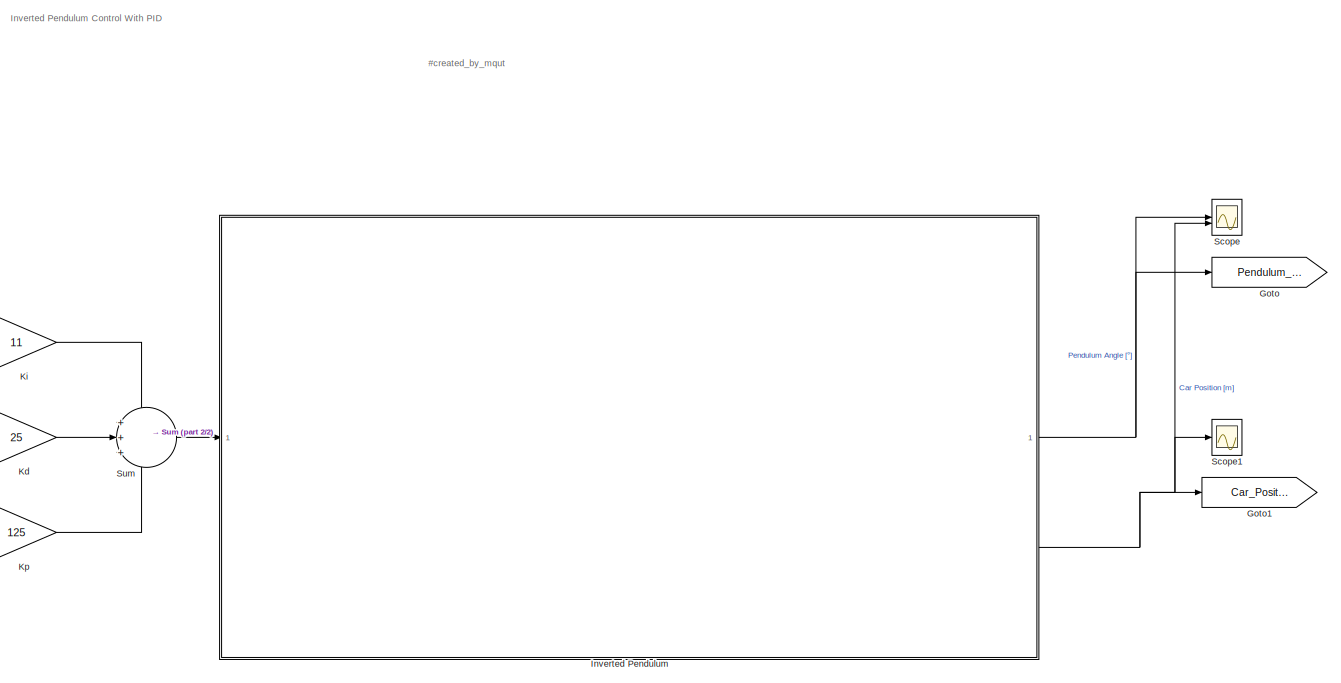
[diagram: root canvas - part 1/2, center side, full height]
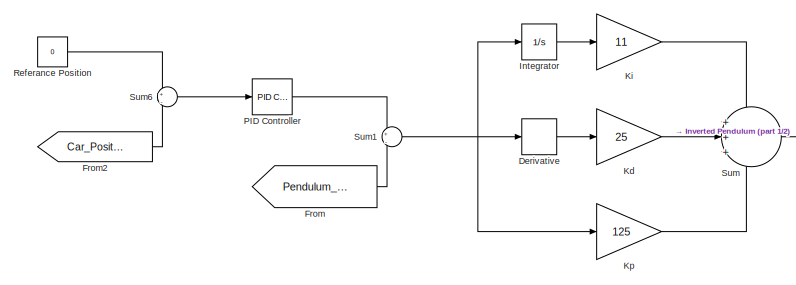
[diagram: root canvas - part 2/2, middle left region]
MODEL slx_9c88fe1b5422
KIND model
CONFIG AbsTol = auto
CONFIG EnableMultiTasking = off
CONFIG FixedStep = 1/1000
CONFIG MaxStep = auto
CONFIG MinStep = auto
CONFIG RelTol = 1e-3
CONFIG SampleTimeConstraint = Unconstrained
CONFIG SolverName = ode4
CONFIG StartTime = 0.0
CONFIG StopTime = 30
BLOCK [Derivative] Derivative
BLOCK [From] From
  GotoTag = Pendulum_Angle
BLOCK [From] From2
  GotoTag = Car_Position
BLOCK [Goto] Goto
  GotoTag = Pendulum_Angle
BLOCK [Goto] Goto1
  GotoTag = Car_Position
BLOCK [Integrator] Integrator
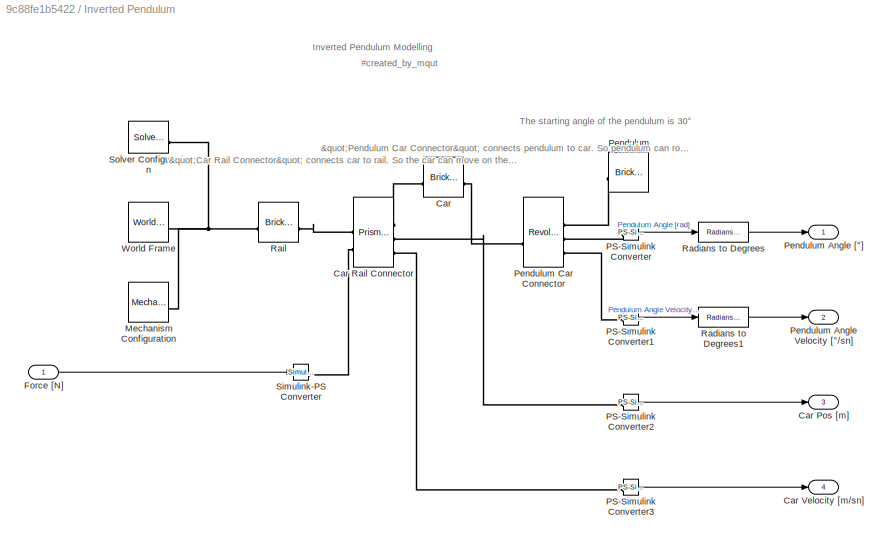
BLOCK [SubSystem] Inverted Pendulum
BLOCK [Reference] Inverted Pendulum/Car  REF=sm_lib/Body Elements/Brick Solid
  SourceBlock = sm_lib/Body Elements/Brick Solid
  SourceType = Brick Solid
BLOCK [Outport] Inverted Pendulum/Car Pos [m]
  Port = 3
BLOCK [Reference] Inverted Pendulum/Car Rail Connector  REF=sm_lib/Joints/Prismatic
Joint
  SourceBlock = sm_lib/Joints/Prismatic\nJoint
  SourceType = Prismatic\nJoint
BLOCK [Outport] Inverted Pendulum/Car Velocity [m//sn]
  Port = 4
BLOCK [Inport] Inverted Pendulum/Force [N]
BLOCK [Reference] Inverted Pendulum/Mechanism Configuration  REF=sm_lib/Utilities/Mechanism
Configuration
  SourceBlock = sm_lib/Utilities/Mechanism\nConfiguration
  SourceType = Mechanism\nConfiguration
BLOCK [Reference] Inverted Pendulum/PS-Simulink Converter  REF=nesl_utility/PS-Simulink
Converter
  SourceBlock = nesl_utility/PS-Simulink\nConverter
  SourceType = PS-Simulink\nConverter
BLOCK [Reference] Inverted Pendulum/PS-Simulink Converter1  REF=nesl_utility/PS-Simulink
Converter
  SourceBlock = nesl_utility/PS-Simulink\nConverter
  SourceType = PS-Simulink\nConverter
BLOCK [Reference] Inverted Pendulum/PS-Simulink Converter2  REF=nesl_utility/PS-Simulink
Converter
  SourceBlock = nesl_utility/PS-Simulink\nConverter
  SourceType = PS-Simulink\nConverter
BLOCK [Reference] Inverted Pendulum/PS-Simulink Converter3  REF=nesl_utility/PS-Simulink
Converter
  SourceBlock = nesl_utility/PS-Simulink\nConverter
  SourceType = PS-Simulink\nConverter
BLOCK [Reference] Inverted Pendulum/Pendulum  REF=sm_lib/Body Elements/Brick Solid
  SourceBlock = sm_lib/Body Elements/Brick Solid
  SourceType = Brick Solid
BLOCK [Outport] Inverted Pendulum/Pendulum Angle Velocity [°//sn]
  Port = 2
BLOCK [Outport] Inverted Pendulum/Pendulum Angle [°]
BLOCK [Reference] Inverted Pendulum/Pendulum Car Connector  REF=sm_lib/Joints/Revolute Joint
  SourceBlock = sm_lib/Joints/Revolute Joint
  SourceType = Revolute Joint
BLOCK [Reference] Inverted Pendulum/Radians to Degrees  REF=simulink_extras/Transformations/Radians
to Degrees
  NameLocation = top
  SourceBlock = simulink_extras/Transformations/Radians\nto Degrees
  SourceType = RadiansToDegrees
BLOCK [Reference] Inverted Pendulum/Radians to Degrees1  REF=simulink_extras/Transformations/Radians
to Degrees
  NameLocation = top
  SourceBlock = simulink_extras/Transformations/Radians\nto Degrees
  SourceType = RadiansToDegrees
BLOCK [Reference] Inverted Pendulum/Rail  REF=sm_lib/Body Elements/Brick Solid
  SourceBlock = sm_lib/Body Elements/Brick Solid
  SourceType = Brick Solid
BLOCK [Reference] Inverted Pendulum/Simulink-PS Converter  REF=nesl_utility/Simulink-PS
Converter
  SourceBlock = nesl_utility/Simulink-PS\nConverter
  SourceType = Simulink-PS\nConverter
BLOCK [Reference] Inverted Pendulum/Solver Configuration  REF=nesl_utility/Solver
Configuration
  SourceBlock = nesl_utility/Solver\nConfiguration
  SourceType = Solver\nConfiguration
BLOCK [Reference] Inverted Pendulum/World Frame  REF=sm_lib/Frames and
Transforms/World Frame
  SourceBlock = sm_lib/Frames and\nTransforms/World Frame
  SourceType = World Frame
BLOCK [Gain] Kd
  Gain = 25
  NameLocation = top
BLOCK [Gain] Ki
  Gain = 11
  NameLocation = top
BLOCK [Gain] Kp
  Gain = 125
  NameLocation = top
BLOCK [Reference] PID Controller  REF=slpidlib/PID Controller
  LibrarySourceBlock = simulink/Continuous/PID Controller
  SourceBlock = slpidlib/PID Controller
  SourceType = PID 1dof
BLOCK [Constant] Referance Position
  Value = 0
BLOCK [Scope] Scope
  Floating = off
  NumInputPorts = 2
  ScopeSpecificationString = Simulink.scopes.TimeScopeBlockCfg('CurrentConfiguration', extmgr.ConfigurationSet(extmgr.Configuration('Core','General UI',true),extmgr.Configuration('Core','Source UI',true),extmgr.Configuration('Sources','WiredSimulink',true,'DataLoggingVariableName','ScopeData1'),extmgr.Configuration('Visuals','Time Domain',true,'SerializedDisplays',{struct('MinYLimReal','-1258.66784','MaxYLimReal','11555.26004...<+2485ch>
BLOCK [Scope] Scope1
  Floating = off
  NumInputPorts = 1
  ScopeSpecificationString = Simulink.scopes.TimeScopeBlockCfg('CurrentConfiguration', extmgr.ConfigurationSet(extmgr.Configuration('Core','General UI',true),extmgr.Configuration('Core','Source UI',true),extmgr.Configuration('Sources','WiredSimulink',true),extmgr.Configuration('Visuals','Time Domain',true,'SerializedDisplays',{struct('MinYLimReal','-1.77508','MaxYLimReal','0.97928','YLabelReal','','MinYLimMag','0.00000','MaxY...<+2401ch>
BLOCK [Sum] Sum
  Inputs = +++
BLOCK [Sum] Sum1
  Inputs = +|-
BLOCK [Sum] Sum6
  Inputs = +|-
ANNOTATION (root): Inverted Pendulum Control With PID
ANNOTATION (root): # created_by_mqut
ANNOTATION Inverted Pendulum: Inverted Pendulum Modelling
ANNOTATION Inverted Pendulum: # created_by_mqut
ANNOTATION Inverted Pendulum: "Car Rail Connector" connects car to rail. So the car can move on the rail
ANNOTATION Inverted Pendulum: "Pendulum Car Connector" connects pendulum to car. So pendulum can rotating .
ANNOTATION Inverted Pendulum: The starting angle of the pendulum is 30°
LINE Derivative:1 -> Kd:1
LINE From2:1 -> Sum6:2
LINE From:1 -> Sum1:2
LINE Integrator:1 -> Ki:1
LINE Inverted Pendulum/Force [N]:1 -> Inverted Pendulum/Simulink-PS Converter:1
LINE Inverted Pendulum/PS-Simulink Converter1:1 -> Inverted Pendulum/Radians to Degrees1:1
LINE Inverted Pendulum/PS-Simulink Converter2:1 -> Inverted Pendulum/Car Pos [m]:1
LINE Inverted Pendulum/PS-Simulink Converter3:1 -> Inverted Pendulum/Car Velocity [m//sn]:1
LINE Inverted Pendulum/PS-Simulink Converter:1 -> Inverted Pendulum/Radians to Degrees:1
LINE Inverted Pendulum/Radians to Degrees1:1 -> Inverted Pendulum/Pendulum Angle Velocity [°//sn]:1
LINE Inverted Pendulum/Radians to Degrees:1 -> Inverted Pendulum/Pendulum Angle [°]:1
NET Inverted Pendulum:1 -> Goto:1, Scope:1
NET Inverted Pendulum:3 -> Goto1:1, Scope1:1, Scope:2
LINE Kd:1 -> Sum:2
LINE Ki:1 -> Sum:1
LINE Kp:1 -> Sum:3
LINE PID Controller:1 -> Sum1:1
LINE Referance Position:1 -> Sum6:1
NET Sum1:1 -> Derivative:1, Integrator:1, Kp:1
LINE Sum6:1 -> PID Controller:1
LINE Sum:1 -> Inverted Pendulum:1
PLINE Inverted Pendulum/Car Rail Connector:LConn1 -- Inverted Pendulum/Rail:LConn1
PLINE Inverted Pendulum/Car Rail Connector:LConn2 -- Inverted Pendulum/Simulink-PS Converter:RConn1
PLINE Inverted Pendulum/Car Rail Connector:RConn1 -- Inverted Pendulum/Car:LConn1
PLINE Inverted Pendulum/Car Rail Connector:RConn2 -- Inverted Pendulum/PS-Simulink Converter2:LConn1
PLINE Inverted Pendulum/Car Rail Connector:RConn3 -- Inverted Pendulum/PS-Simulink Converter3:LConn1
PLINE Inverted Pendulum/Car:RConn1 -- Inverted Pendulum/Pendulum Car Connector:LConn1
PNET net1: Inverted Pendulum/Mechanism Configuration:RConn1 -- Inverted Pendulum/Rail:RConn1 -- Inverted Pendulum/Solver Configuration:RConn1 -- Inverted Pendulum/World Frame:RConn1
PLINE Inverted Pendulum/PS-Simulink Converter1:LConn1 -- Inverted Pendulum/Pendulum Car Connector:RConn3
PLINE Inverted Pendulum/PS-Simulink Converter:LConn1 -- Inverted Pendulum/Pendulum Car Connector:RConn2
PLINE Inverted Pendulum/Pendulum Car Connector:RConn1 -- Inverted Pendulum/Pendulum:LConn1
note: NET lines group one-source signal fan-out (src -> all destinations, sorted); 1:1 wires keep LINE; PNET lines group multi-terminal physical nets as a canonical sorted terminal list (undirected conserving connections); 2-terminal nets keep the pairwise PLINE form
